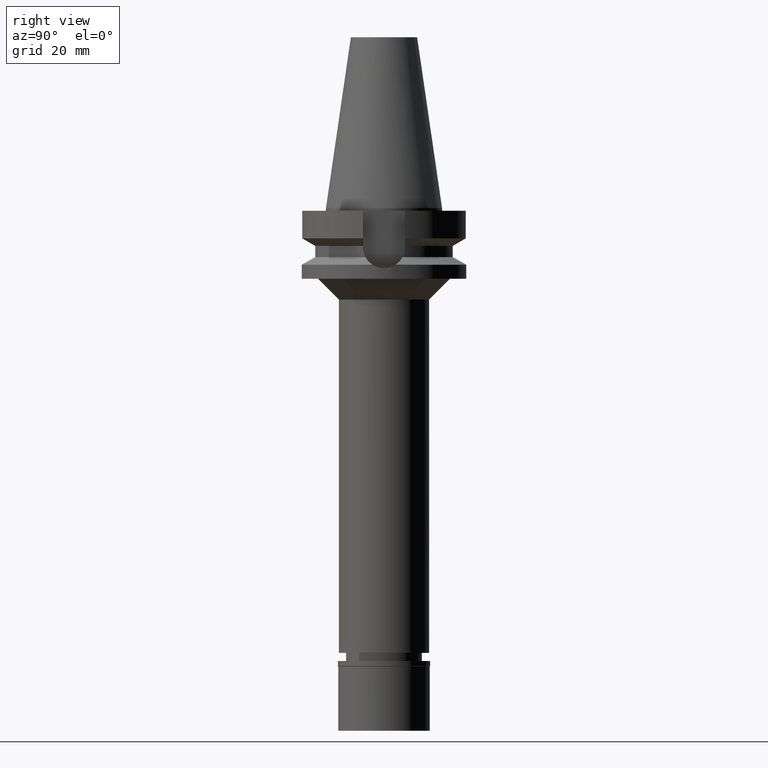
[diagram: clean part render]
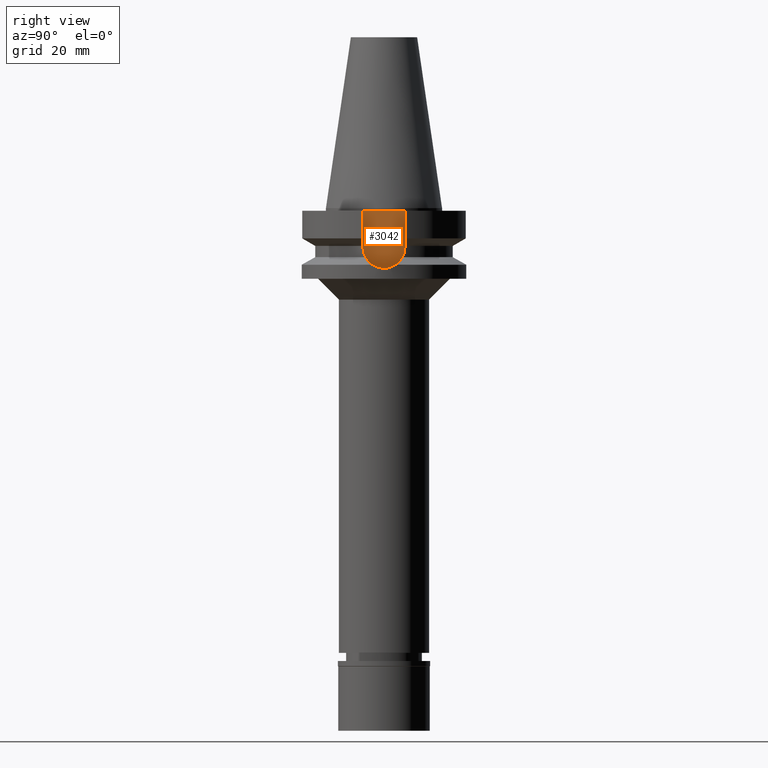
[diagram: same view with one face highlighted and labeled with its STEP entity id]
A machine part, right view. The second image highlights one B-rep face of the part: STEP entity #3042.
In plain terms, the highlighted planar face has unit normal (1, 0, 0).
Its self-contained STEP definition (entity closure, byte-faithful):
#167 = VERTEX_POINT ( 'NONE', #1794 ) ;
#223 = EDGE_CURVE ( 'NONE', #2140, #167, #1906, .T. ) ;
#235 = VECTOR ( 'NONE', #604, 1000.000000000000000 ) ;
#274 = ORIENTED_EDGE ( 'NONE', *, *, #1521, .T. ) ;
#327 = CARTESIAN_POINT ( 'NONE',  ( 22.50000000000000000, 0.0000000000000000000, 0.0000000000000000000 ) ) ;
#343 = CARTESIAN_POINT ( 'NONE',  ( 22.50000000000000000, 8.050000000000000711, -1.000000000000000000 ) ) ;
#396 = DIRECTION ( 'NONE',  ( 0.0000000000000000000, 0.0000000000000000000, 1.000000000000000000 ) ) ;
#427 = VECTOR ( 'NONE', #396, 1000.000000000000000 ) ;
#564 = DIRECTION ( 'NONE',  ( 0.0000000000000000000, 1.000000000000000000, 0.0000000000000000000 ) ) ;
#591 = DIRECTION ( 'NONE',  ( 0.0000000000000000000, 1.000000000000000000, 0.0000000000000000000 ) ) ;
#604 = DIRECTION ( 'NONE',  ( 0.0000000000000000000, -1.000000000000000000, 0.0000000000000000000 ) ) ;
#658 = ORIENTED_EDGE ( 'NONE', *, *, #1392, .F. ) ;
#848 = PLANE ( 'NONE',  #1241 ) ;
#984 = VERTEX_POINT ( 'NONE', #1791 ) ;
#1013 = LINE ( 'NONE', #343, #235 ) ;
#1205 = CARTESIAN_POINT ( 'NONE',  ( 22.50000000000000000, 8.050000000000000711, -14.94999999999999929 ) ) ;
#1241 = AXIS2_PLACEMENT_3D ( 'NONE', #327, #2969, #564 ) ;
#1392 = EDGE_CURVE ( 'NONE', #2294, #2140, #2167, .T. ) ;
#1521 = EDGE_CURVE ( 'NONE', #984, #167, #1013, .T. ) ;
#1554 = DIRECTION ( 'NONE',  ( 0.0000000000000000000, 0.0000000000000000000, -1.000000000000000000 ) ) ;
#1664 = AXIS2_PLACEMENT_3D ( 'NONE', #2752, #2558, #591 ) ;
#1791 = CARTESIAN_POINT ( 'NONE',  ( 22.50000000000000000, 8.050000000000000711, -1.000000000000000000 ) ) ;
#1794 = CARTESIAN_POINT ( 'NONE',  ( 22.50000000000000000, -8.050000000000000711, -1.000000000000000000 ) ) ;
#1905 = VECTOR ( 'NONE', #1554, 1000.000000000000000 ) ;
#1906 = LINE ( 'NONE', #2314, #427 ) ;
#1975 = ORIENTED_EDGE ( 'NONE', *, *, #223, .F. ) ;
#2038 = FACE_OUTER_BOUND ( 'NONE', #2726, .T. ) ;
#2075 = LINE ( 'NONE', #2753, #1905 ) ;
#2140 = VERTEX_POINT ( 'NONE', #2290 ) ;
#2167 = CIRCLE ( 'NONE', #1664, 8.050000000000000711 ) ;
#2290 = CARTESIAN_POINT ( 'NONE',  ( 22.50000000000000000, -8.050000000000000711, -14.94999999999999929 ) ) ;
#2294 = VERTEX_POINT ( 'NONE', #1205 ) ;
#2314 = CARTESIAN_POINT ( 'NONE',  ( 22.50000000000000000, -8.050000000000000711, -14.94999999999999929 ) ) ;
#2428 = ORIENTED_EDGE ( 'NONE', *, *, #2646, .F. ) ;
#2558 = DIRECTION ( 'NONE',  ( -1.000000000000000000, 0.0000000000000000000, 0.0000000000000000000 ) ) ;
#2646 = EDGE_CURVE ( 'NONE', #984, #2294, #2075, .T. ) ;
#2726 = EDGE_LOOP ( 'NONE', ( #1975, #658, #2428, #274 ) ) ;
#2752 = CARTESIAN_POINT ( 'NONE',  ( 22.50000000000000000, 0.0000000000000000000, -14.94999999999999929 ) ) ;
#2753 = CARTESIAN_POINT ( 'NONE',  ( 22.50000000000000000, 8.050000000000000711, -1.000000000000000000 ) ) ;
#2969 = DIRECTION ( 'NONE',  ( 1.000000000000000000, 0.0000000000000000000, 0.0000000000000000000 ) ) ;
#3042 = ADVANCED_FACE ( 'NONE', ( #2038 ), #848, .T. ) ;